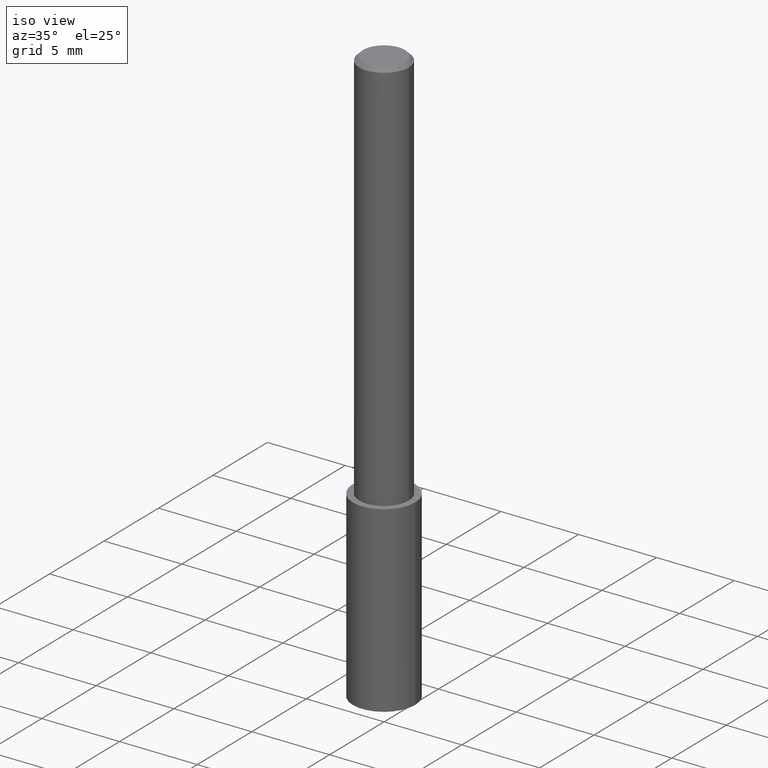
[diagram: clean part render]
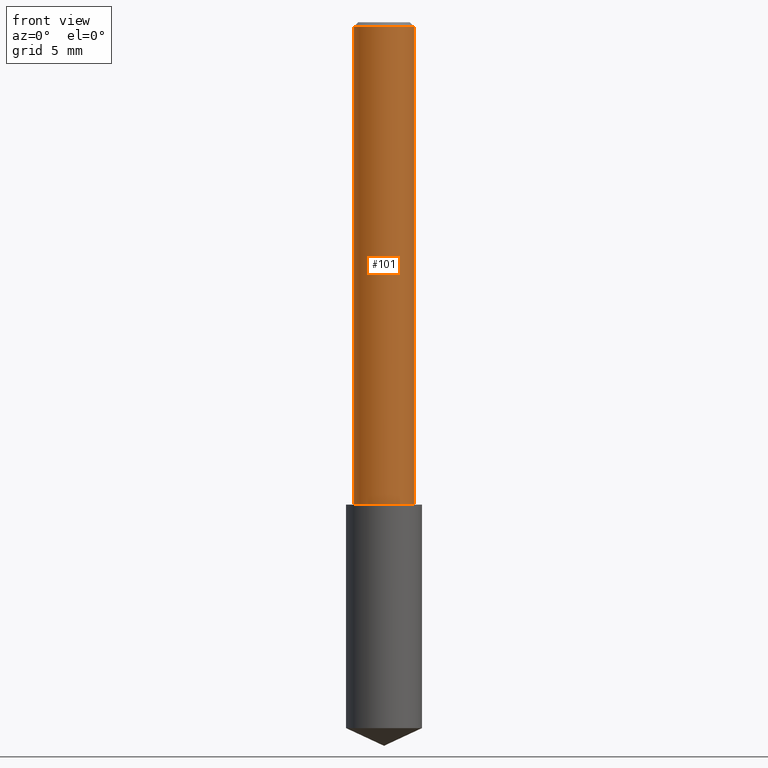
[diagram: tour spotlight — one face highlighted and labeled with its STEP entity id]
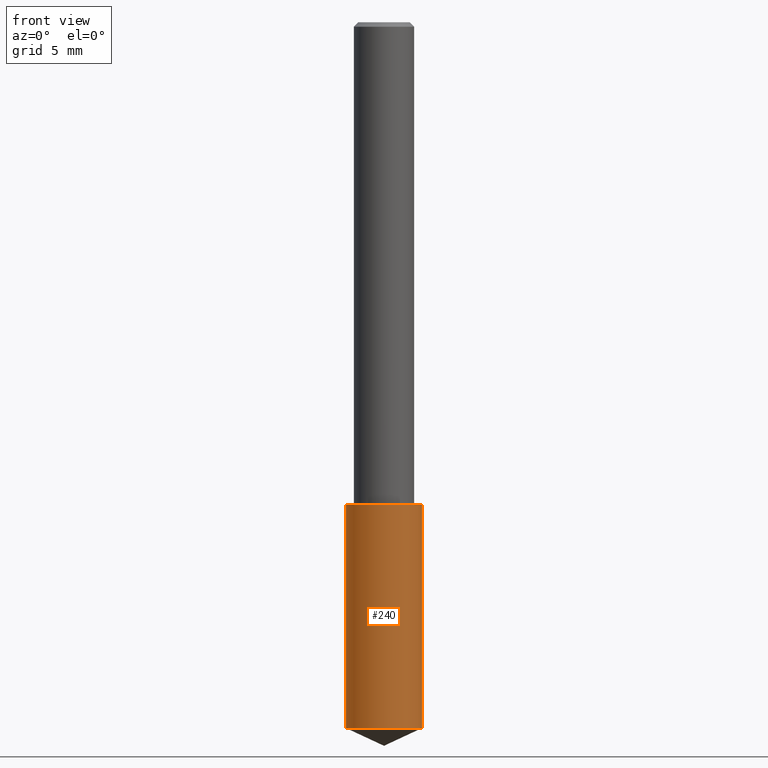
[diagram: tour spotlight — one face highlighted and labeled with its STEP entity id]
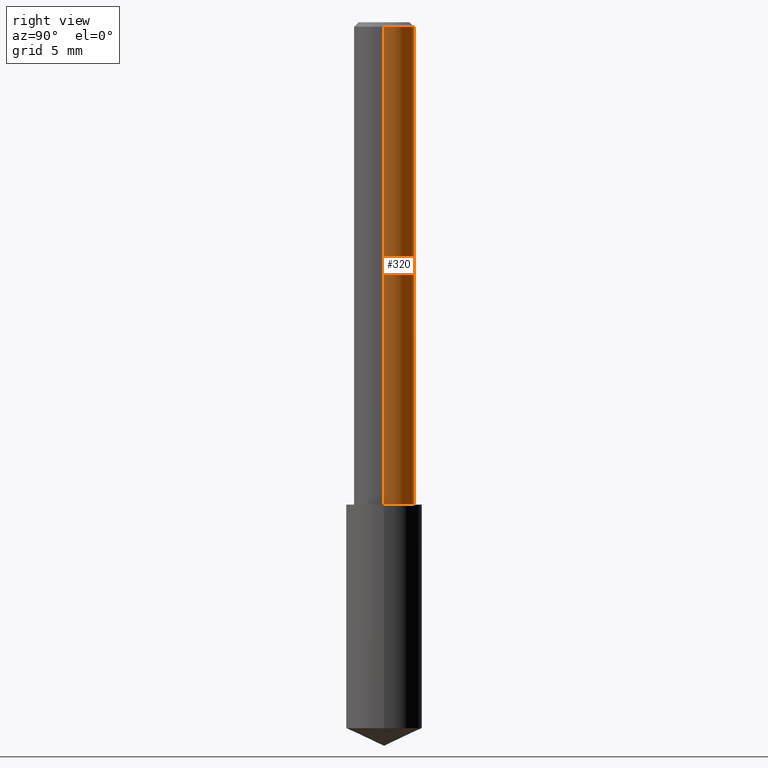
[diagram: tour spotlight — one face highlighted and labeled with its STEP entity id]
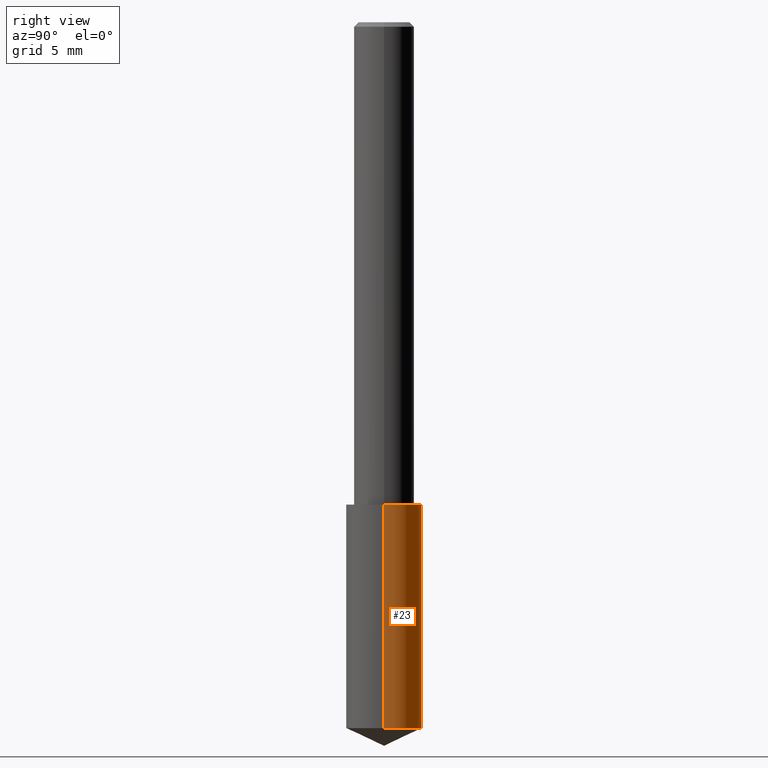
[diagram: tour spotlight — one face highlighted and labeled with its STEP entity id]
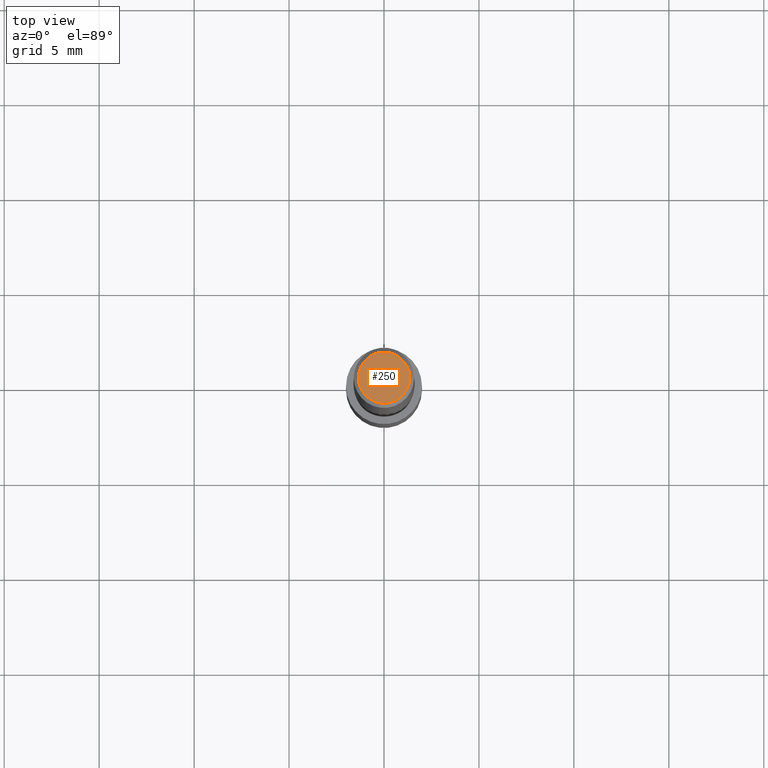
[diagram: tour spotlight — one face highlighted and labeled with its STEP entity id]
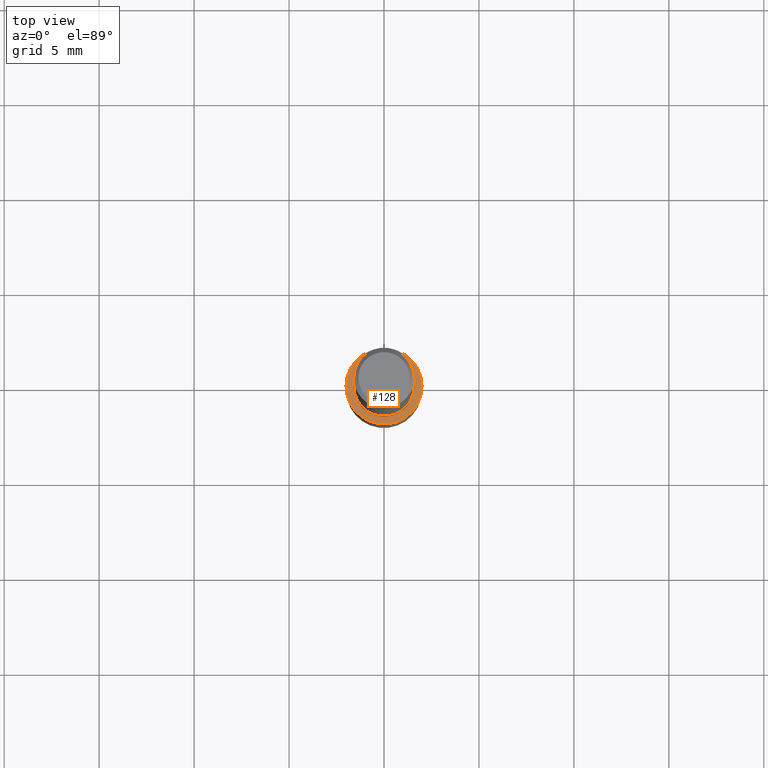
[diagram: tour spotlight — one face highlighted and labeled with its STEP entity id]
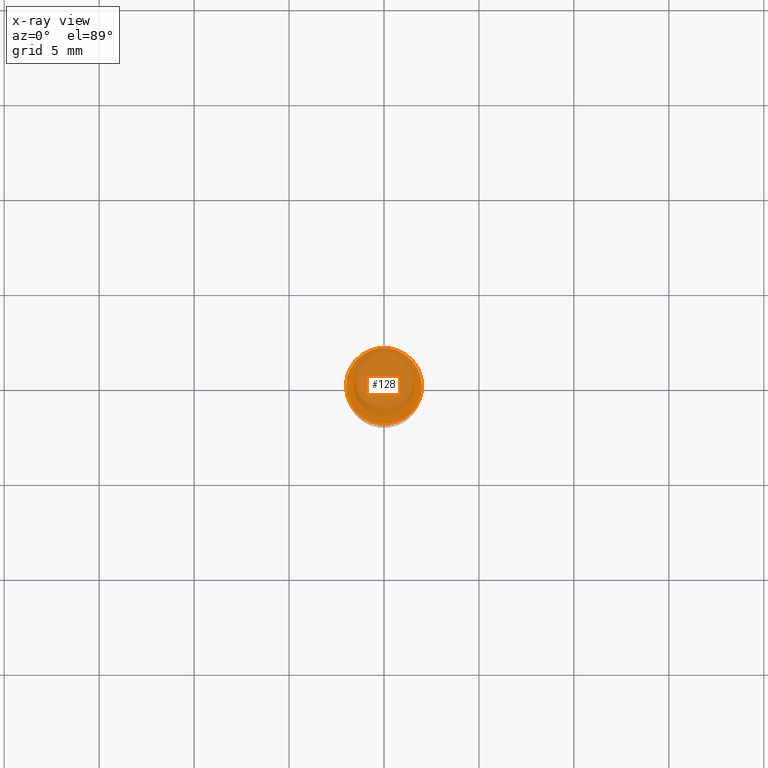
[diagram: x-ray of the same camera — body ghosted, this tour face saturated]
A machine part: a face-by-face anatomy tour. The part has 11 B-rep faces; the first image is the clean iso view, then the 6 largest visible faces are spotlighted one at a time (largest first), each with its STEP entity span.

Face 1 — front view, entity #101. In plain terms, the highlighted cylindrical surface (edge-blend (fillet) strip) has radius 1.5875 mm, axis along (-0, 0, 1).
Definition (entity closure, byte-faithful):
#6 = EDGE_LOOP ( 'NONE', ( #224, #322, #241, #325 ) ) ;
#13 = EDGE_CURVE ( 'NONE', #220, #223, #297, .T. ) ;
#19 = CARTESIAN_POINT ( 'NONE',  ( 2.292627005798582375E-31, -3.273263755165472650E-17, -0.009375000000000067307 ) ) ;
#25 = CARTESIAN_POINT ( 'NONE',  ( 0.000000000000000000, 0.000000000000000000, 0.000000000000000000 ) ) ;
#26 = CARTESIAN_POINT ( 'NONE',  ( 0.06250000000000012490, -3.927916506198539224E-15, -1.000000000000000222 ) ) ;
#42 = VERTEX_POINT ( 'NONE', #308 ) ;
#68 = DIRECTION ( 'NONE',  ( -2.445468806185136597E-29, 3.491481338843145583E-15, 1.000000000000000000 ) ) ;
#75 = FACE_OUTER_BOUND ( 'NONE', #6, .T. ) ;
#76 = CARTESIAN_POINT ( 'NONE',  ( 0.06250000000000006939, -4.364351673553921624E-16, 3.047610484872463374E-30 ) ) ;
#86 = EDGE_CURVE ( 'NONE', #221, #42, #252, .T. ) ;
#93 = EDGE_CURVE ( 'NONE', #220, #221, #225, .T. ) ;
#101 = ADVANCED_FACE ( 'NONE', ( #75 ), #304, .T. ) ;
#122 = VECTOR ( 'NONE', #186, 39.37007874015748143 ) ;
#130 = DIRECTION ( 'NONE',  ( 1.000000000000000000, -6.982962677686266711E-15, 4.876176775795935793E-29 ) ) ;
#139 = AXIS2_PLACEMENT_3D ( 'NONE', #25, #251, #130 ) ;
#142 = CARTESIAN_POINT ( 'NONE',  ( -0.06250000000000000000, -1.318017778347336672E-15, -0.009375000000000067307 ) ) ;
#160 = DIRECTION ( 'NONE',  ( 1.000000000000000000, -6.982962677686266711E-15, 0.000000000000000000 ) ) ;
#180 = DIRECTION ( 'NONE',  ( 1.000000000000000000, -6.982962677686264344E-15, 0.000000000000000000 ) ) ;
#186 = DIRECTION ( 'NONE',  ( -2.445468806185136877E-29, 3.491481338843145188E-15, 1.000000000000000000 ) ) ;
#198 = AXIS2_PLACEMENT_3D ( 'NONE', #19, #202, #160 ) ;
#202 = DIRECTION ( 'NONE',  ( -2.445468806185136597E-29, 3.491481338843145583E-15, 1.000000000000000000 ) ) ;
#204 = CARTESIAN_POINT ( 'NONE',  ( -0.06250000000000012490, -1.318017778347335489E-15, -1.000000000000000222 ) ) ;
#209 = VECTOR ( 'NONE', #306, 39.37007874015748143 ) ;
#220 = VERTEX_POINT ( 'NONE', #204 ) ;
#221 = VERTEX_POINT ( 'NONE', #142 ) ;
#223 = VERTEX_POINT ( 'NONE', #26 ) ;
#224 = ORIENTED_EDGE ( 'NONE', *, *, #93, .F. ) ;
#225 = LINE ( 'NONE', #310, #209 ) ;
#241 = ORIENTED_EDGE ( 'NONE', *, *, #268, .T. ) ;
#251 = DIRECTION ( 'NONE',  ( -2.445468806185136597E-29, 3.491481338843145583E-15, 1.000000000000000000 ) ) ;
#252 = CIRCLE ( 'NONE', #198, 0.06250000000000000000 ) ;
#268 = EDGE_CURVE ( 'NONE', #223, #42, #307, .T. ) ;
#297 = CIRCLE ( 'NONE', #311, 0.06250000000000012490 ) ;
#301 = CARTESIAN_POINT ( 'NONE',  ( 2.445468806185137438E-29, -3.491481338843146371E-15, -1.000000000000000222 ) ) ;
#304 = CYLINDRICAL_SURFACE ( 'NONE', #139, 0.06250000000000006939 ) ;
#306 = DIRECTION ( 'NONE',  ( -2.445468806185136877E-29, 3.491481338843145188E-15, 1.000000000000000000 ) ) ;
#307 = LINE ( 'NONE', #76, #122 ) ;
#308 = CARTESIAN_POINT ( 'NONE',  ( 0.06250000000000000000, -4.691678049070464390E-16, -0.009375000000000067307 ) ) ;
#310 = CARTESIAN_POINT ( 'NONE',  ( -0.06250000000000006939, 4.440892098500631092E-16, -3.074334431409319267E-30 ) ) ;
#311 = AXIS2_PLACEMENT_3D ( 'NONE', #301, #68, #180 ) ;
#322 = ORIENTED_EDGE ( 'NONE', *, *, #13, .T. ) ;
#325 = ORIENTED_EDGE ( 'NONE', *, *, #86, .F. ) ;

Face 2 — front view, entity #240. In plain terms, the highlighted cylindrical surface (partial cylindrical patch) has radius 2.0002 mm, axis along (-0, 0, 1).
Definition (entity closure, byte-faithful):
#9 = VERTEX_POINT ( 'NONE', #44 ) ;
#14 = CARTESIAN_POINT ( 'NONE',  ( -0.07875000000000000056, -3.740692654982671056E-15, -1.000000000000000222 ) ) ;
#27 = AXIS2_PLACEMENT_3D ( 'NONE', #81, #192, #46 ) ;
#44 = CARTESIAN_POINT ( 'NONE',  ( 0.07875000000000000056, -4.041389649710939323E-15, -1.000000000000000222 ) ) ;
#46 = DIRECTION ( 'NONE',  ( 1.000000000000000000, -6.982962677686268288E-15, 0.000000000000000000 ) ) ;
#48 = CARTESIAN_POINT ( 'NONE',  ( 0.07875000000000000056, -4.041389649710940112E-15, -1.000000000000000222 ) ) ;
#63 = EDGE_CURVE ( 'NONE', #90, #95, #217, .T. ) ;
#64 = ORIENTED_EDGE ( 'NONE', *, *, #153, .T. ) ;
#73 = VECTOR ( 'NONE', #187, 39.37007874015748143 ) ;
#78 = CARTESIAN_POINT ( 'NONE',  ( -0.07875000000000000056, -2.931928934432067570E-15, -1.000000000000000222 ) ) ;
#80 = CARTESIAN_POINT ( 'NONE',  ( 0.07874999999999997280, -5.658917090812145507E-15, -1.463278271920293916 ) ) ;
#81 = CARTESIAN_POINT ( 'NONE',  ( 2.445468806185136877E-29, -3.491481338843145977E-15, -1.000000000000000222 ) ) ;
#90 = VERTEX_POINT ( 'NONE', #208 ) ;
#91 = ORIENTED_EDGE ( 'NONE', *, *, #63, .T. ) ;
#95 = VERTEX_POINT ( 'NONE', #80 ) ;
#102 = DIRECTION ( 'NONE',  ( -2.445468806185136877E-29, 3.491481338843145188E-15, 1.000000000000000000 ) ) ;
#120 = ORIENTED_EDGE ( 'NONE', *, *, #156, .F. ) ;
#125 = LINE ( 'NONE', #48, #239 ) ;
#143 = EDGE_CURVE ( 'NONE', #150, #9, #321, .T. ) ;
#150 = VERTEX_POINT ( 'NONE', #14 ) ;
#153 = EDGE_CURVE ( 'NONE', #95, #9, #125, .T. ) ;
#156 = EDGE_CURVE ( 'NONE', #90, #150, #205, .T. ) ;
#164 = CARTESIAN_POINT ( 'NONE',  ( 2.445468806185137438E-29, -3.491481338843146371E-15, -1.000000000000000222 ) ) ;
#167 = CYLINDRICAL_SURFACE ( 'NONE', #215, 0.07875000000000000056 ) ;
#187 = DIRECTION ( 'NONE',  ( -2.445468806185136877E-29, 3.491481338843145188E-15, 1.000000000000000000 ) ) ;
#192 = DIRECTION ( 'NONE',  ( -2.445468806185136597E-29, 3.491481338843145583E-15, 1.000000000000000000 ) ) ;
#205 = LINE ( 'NONE', #78, #73 ) ;
#208 = CARTESIAN_POINT ( 'NONE',  ( -0.07874999999999997280, -4.549456375533274148E-15, -1.463278271920293916 ) ) ;
#215 = AXIS2_PLACEMENT_3D ( 'NONE', #164, #234, #253 ) ;
#217 = CIRCLE ( 'NONE', #233, 0.07875000000000000056 ) ;
#232 = DIRECTION ( 'NONE',  ( 1.000000000000000000, -6.982962677686261977E-15, 0.000000000000000000 ) ) ;
#233 = AXIS2_PLACEMENT_3D ( 'NONE', #328, #282, #232 ) ;
#234 = DIRECTION ( 'NONE',  ( -2.445468806185136597E-29, 3.491481338843145583E-15, 1.000000000000000000 ) ) ;
#239 = VECTOR ( 'NONE', #102, 39.37007874015748143 ) ;
#240 = ADVANCED_FACE ( 'NONE', ( #316 ), #167, .T. ) ;
#253 = DIRECTION ( 'NONE',  ( 1.000000000000000000, -6.982962677686268288E-15, 0.000000000000000000 ) ) ;
#282 = DIRECTION ( 'NONE',  ( -2.445468806185136597E-29, 3.491481338843145583E-15, 1.000000000000000000 ) ) ;
#299 = EDGE_LOOP ( 'NONE', ( #120, #91, #64, #302 ) ) ;
#302 = ORIENTED_EDGE ( 'NONE', *, *, #143, .F. ) ;
#316 = FACE_OUTER_BOUND ( 'NONE', #299, .T. ) ;
#321 = CIRCLE ( 'NONE', #27, 0.07875000000000000056 ) ;
#328 = CARTESIAN_POINT ( 'NONE',  ( 3.578401368749571322E-29, -5.109008779944352161E-15, -1.463278271920293916 ) ) ;

Face 3 — right view, entity #320. In plain terms, the highlighted cylindrical surface (edge-blend (fillet) strip) has radius 1.5875 mm, axis along (-0, 0, 1).
Definition (entity closure, byte-faithful):
#18 = AXIS2_PLACEMENT_3D ( 'NONE', #248, #155, #335 ) ;
#26 = CARTESIAN_POINT ( 'NONE',  ( 0.06250000000000012490, -3.927916506198539224E-15, -1.000000000000000222 ) ) ;
#29 = CARTESIAN_POINT ( 'NONE',  ( 2.445468806185137438E-29, -3.491481338843146371E-15, -1.000000000000000222 ) ) ;
#39 = ORIENTED_EDGE ( 'NONE', *, *, #93, .T. ) ;
#42 = VERTEX_POINT ( 'NONE', #308 ) ;
#49 = EDGE_CURVE ( 'NONE', #42, #221, #129, .T. ) ;
#66 = EDGE_LOOP ( 'NONE', ( #219, #39, #323, #121 ) ) ;
#76 = CARTESIAN_POINT ( 'NONE',  ( 0.06250000000000006939, -4.364351673553921624E-16, 3.047610484872463374E-30 ) ) ;
#93 = EDGE_CURVE ( 'NONE', #220, #221, #225, .T. ) ;
#104 = AXIS2_PLACEMENT_3D ( 'NONE', #29, #140, #258 ) ;
#121 = ORIENTED_EDGE ( 'NONE', *, *, #268, .F. ) ;
#122 = VECTOR ( 'NONE', #186, 39.37007874015748143 ) ;
#129 = CIRCLE ( 'NONE', #18, 0.06250000000000000000 ) ;
#140 = DIRECTION ( 'NONE',  ( -2.445468806185136597E-29, 3.491481338843145583E-15, 1.000000000000000000 ) ) ;
#142 = CARTESIAN_POINT ( 'NONE',  ( -0.06250000000000000000, -1.318017778347336672E-15, -0.009375000000000067307 ) ) ;
#155 = DIRECTION ( 'NONE',  ( -2.445468806185136597E-29, 3.491481338843145583E-15, 1.000000000000000000 ) ) ;
#159 = DIRECTION ( 'NONE',  ( 1.000000000000000000, -6.982962677686266711E-15, 4.876176775795935793E-29 ) ) ;
#178 = EDGE_CURVE ( 'NONE', #223, #220, #188, .T. ) ;
#186 = DIRECTION ( 'NONE',  ( -2.445468806185136877E-29, 3.491481338843145188E-15, 1.000000000000000000 ) ) ;
#188 = CIRCLE ( 'NONE', #104, 0.06250000000000012490 ) ;
#204 = CARTESIAN_POINT ( 'NONE',  ( -0.06250000000000012490, -1.318017778347335489E-15, -1.000000000000000222 ) ) ;
#207 = FACE_OUTER_BOUND ( 'NONE', #66, .T. ) ;
#209 = VECTOR ( 'NONE', #306, 39.37007874015748143 ) ;
#219 = ORIENTED_EDGE ( 'NONE', *, *, #178, .T. ) ;
#220 = VERTEX_POINT ( 'NONE', #204 ) ;
#221 = VERTEX_POINT ( 'NONE', #142 ) ;
#223 = VERTEX_POINT ( 'NONE', #26 ) ;
#225 = LINE ( 'NONE', #310, #209 ) ;
#228 = CARTESIAN_POINT ( 'NONE',  ( 0.000000000000000000, 0.000000000000000000, 0.000000000000000000 ) ) ;
#248 = CARTESIAN_POINT ( 'NONE',  ( 2.292627005798582375E-31, -3.273263755165472650E-17, -0.009375000000000067307 ) ) ;
#258 = DIRECTION ( 'NONE',  ( 1.000000000000000000, -6.982962677686264344E-15, 0.000000000000000000 ) ) ;
#264 = AXIS2_PLACEMENT_3D ( 'NONE', #228, #309, #159 ) ;
#268 = EDGE_CURVE ( 'NONE', #223, #42, #307, .T. ) ;
#306 = DIRECTION ( 'NONE',  ( -2.445468806185136877E-29, 3.491481338843145188E-15, 1.000000000000000000 ) ) ;
#307 = LINE ( 'NONE', #76, #122 ) ;
#308 = CARTESIAN_POINT ( 'NONE',  ( 0.06250000000000000000, -4.691678049070464390E-16, -0.009375000000000067307 ) ) ;
#309 = DIRECTION ( 'NONE',  ( -2.445468806185136597E-29, 3.491481338843145583E-15, 1.000000000000000000 ) ) ;
#310 = CARTESIAN_POINT ( 'NONE',  ( -0.06250000000000006939, 4.440892098500631092E-16, -3.074334431409319267E-30 ) ) ;
#320 = ADVANCED_FACE ( 'NONE', ( #207 ), #340, .T. ) ;
#323 = ORIENTED_EDGE ( 'NONE', *, *, #49, .F. ) ;
#335 = DIRECTION ( 'NONE',  ( 1.000000000000000000, -6.982962677686266711E-15, 0.000000000000000000 ) ) ;
#340 = CYLINDRICAL_SURFACE ( 'NONE', #264, 0.06250000000000006939 ) ;

Face 4 — right view, entity #23. In plain terms, the highlighted cylindrical surface (partial cylindrical patch) has radius 2.0002 mm, axis along (-0, 0, 1).
Definition (entity closure, byte-faithful):
#9 = VERTEX_POINT ( 'NONE', #44 ) ;
#11 = FACE_OUTER_BOUND ( 'NONE', #41, .T. ) ;
#14 = CARTESIAN_POINT ( 'NONE',  ( -0.07875000000000000056, -3.740692654982671056E-15, -1.000000000000000222 ) ) ;
#16 = DIRECTION ( 'NONE',  ( -2.445468806185136597E-29, 3.491481338843145583E-15, 1.000000000000000000 ) ) ;
#23 = ADVANCED_FACE ( 'NONE', ( #11 ), #137, .T. ) ;
#31 = EDGE_CURVE ( 'NONE', #9, #150, #116, .T. ) ;
#41 = EDGE_LOOP ( 'NONE', ( #270, #177, #200, #148 ) ) ;
#44 = CARTESIAN_POINT ( 'NONE',  ( 0.07875000000000000056, -4.041389649710939323E-15, -1.000000000000000222 ) ) ;
#48 = CARTESIAN_POINT ( 'NONE',  ( 0.07875000000000000056, -4.041389649710940112E-15, -1.000000000000000222 ) ) ;
#67 = AXIS2_PLACEMENT_3D ( 'NONE', #106, #16, #277 ) ;
#70 = EDGE_CURVE ( 'NONE', #95, #90, #92, .T. ) ;
#73 = VECTOR ( 'NONE', #187, 39.37007874015748143 ) ;
#78 = CARTESIAN_POINT ( 'NONE',  ( -0.07875000000000000056, -2.931928934432067570E-15, -1.000000000000000222 ) ) ;
#80 = CARTESIAN_POINT ( 'NONE',  ( 0.07874999999999997280, -5.658917090812145507E-15, -1.463278271920293916 ) ) ;
#90 = VERTEX_POINT ( 'NONE', #208 ) ;
#92 = CIRCLE ( 'NONE', #67, 0.07875000000000000056 ) ;
#95 = VERTEX_POINT ( 'NONE', #80 ) ;
#102 = DIRECTION ( 'NONE',  ( -2.445468806185136877E-29, 3.491481338843145188E-15, 1.000000000000000000 ) ) ;
#106 = CARTESIAN_POINT ( 'NONE',  ( 3.578401368749571322E-29, -5.109008779944352161E-15, -1.463278271920293916 ) ) ;
#116 = CIRCLE ( 'NONE', #261, 0.07875000000000000056 ) ;
#125 = LINE ( 'NONE', #48, #239 ) ;
#127 = CARTESIAN_POINT ( 'NONE',  ( 2.445468806185136877E-29, -3.491481338843145977E-15, -1.000000000000000222 ) ) ;
#132 = CARTESIAN_POINT ( 'NONE',  ( 2.445468806185137438E-29, -3.491481338843146371E-15, -1.000000000000000222 ) ) ;
#137 = CYLINDRICAL_SURFACE ( 'NONE', #218, 0.07875000000000000056 ) ;
#148 = ORIENTED_EDGE ( 'NONE', *, *, #153, .F. ) ;
#150 = VERTEX_POINT ( 'NONE', #14 ) ;
#153 = EDGE_CURVE ( 'NONE', #95, #9, #125, .T. ) ;
#156 = EDGE_CURVE ( 'NONE', #90, #150, #205, .T. ) ;
#163 = DIRECTION ( 'NONE',  ( -2.445468806185136597E-29, 3.491481338843145583E-15, 1.000000000000000000 ) ) ;
#177 = ORIENTED_EDGE ( 'NONE', *, *, #156, .T. ) ;
#187 = DIRECTION ( 'NONE',  ( -2.445468806185136877E-29, 3.491481338843145188E-15, 1.000000000000000000 ) ) ;
#200 = ORIENTED_EDGE ( 'NONE', *, *, #31, .F. ) ;
#203 = DIRECTION ( 'NONE',  ( 1.000000000000000000, -6.982962677686268288E-15, 0.000000000000000000 ) ) ;
#205 = LINE ( 'NONE', #78, #73 ) ;
#208 = CARTESIAN_POINT ( 'NONE',  ( -0.07874999999999997280, -4.549456375533274148E-15, -1.463278271920293916 ) ) ;
#218 = AXIS2_PLACEMENT_3D ( 'NONE', #132, #163, #255 ) ;
#239 = VECTOR ( 'NONE', #102, 39.37007874015748143 ) ;
#255 = DIRECTION ( 'NONE',  ( 1.000000000000000000, -6.982962677686268288E-15, 0.000000000000000000 ) ) ;
#261 = AXIS2_PLACEMENT_3D ( 'NONE', #127, #330, #203 ) ;
#270 = ORIENTED_EDGE ( 'NONE', *, *, #70, .T. ) ;
#277 = DIRECTION ( 'NONE',  ( 1.000000000000000000, -6.982962677686261977E-15, 0.000000000000000000 ) ) ;
#330 = DIRECTION ( 'NONE',  ( -2.445468806185136597E-29, 3.491481338843145583E-15, 1.000000000000000000 ) ) ;

Face 5 — top view, entity #250. In plain terms, the highlighted planar face has unit normal (0, -0, -1).
Definition (entity closure, byte-faithful):
#8 = VERTEX_POINT ( 'NONE', #154 ) ;
#20 = CARTESIAN_POINT ( 'NONE',  ( -7.487088864773345706E-50, 1.068957861474247695E-35, 3.061616997868395197E-21 ) ) ;
#34 = CIRCLE ( 'NONE', #260, 0.05312499999999999861 ) ;
#56 = AXIS2_PLACEMENT_3D ( 'NONE', #339, #312, #212 ) ;
#58 = CARTESIAN_POINT ( 'NONE',  ( -7.487088864773345706E-50, 1.068957861474247695E-35, 3.061616997868395197E-21 ) ) ;
#100 = DIRECTION ( 'NONE',  ( -2.445468806185136597E-29, 3.491481338843145583E-15, 1.000000000000000000 ) ) ;
#103 = DIRECTION ( 'NONE',  ( 1.000000000000000000, -6.982962677686266711E-15, 4.876176628004948512E-29 ) ) ;
#119 = VERTEX_POINT ( 'NONE', #229 ) ;
#131 = PLANE ( 'NONE',  #56 ) ;
#134 = AXIS2_PLACEMENT_3D ( 'NONE', #58, #100, #283 ) ;
#151 = CIRCLE ( 'NONE', #134, 0.05312499999999999861 ) ;
#152 = ORIENTED_EDGE ( 'NONE', *, *, #266, .T. ) ;
#154 = CARTESIAN_POINT ( 'NONE',  ( -0.05312499999999999861, 3.873362110279099094E-16, 3.061616995216862494E-21 ) ) ;
#182 = EDGE_LOOP ( 'NONE', ( #152, #327 ) ) ;
#194 = EDGE_CURVE ( 'NONE', #119, #8, #151, .T. ) ;
#212 = DIRECTION ( 'NONE',  ( -1.000000000000000000, 6.982962677686265922E-15, -4.876176775795935793E-29 ) ) ;
#229 = CARTESIAN_POINT ( 'NONE',  ( 0.05312499999999999861, -4.129888592719939842E-16, 3.061617000609493422E-21 ) ) ;
#230 = DIRECTION ( 'NONE',  ( -2.445468806185136597E-29, 3.491481338843145583E-15, 1.000000000000000000 ) ) ;
#236 = FACE_OUTER_BOUND ( 'NONE', #182, .T. ) ;
#250 = ADVANCED_FACE ( 'NONE', ( #236 ), #131, .F. ) ;
#260 = AXIS2_PLACEMENT_3D ( 'NONE', #20, #230, #103 ) ;
#266 = EDGE_CURVE ( 'NONE', #8, #119, #34, .T. ) ;
#283 = DIRECTION ( 'NONE',  ( 1.000000000000000000, -6.982962677686266711E-15, 4.876176628004948512E-29 ) ) ;
#312 = DIRECTION ( 'NONE',  ( 2.438088387897960049E-29, -3.491481338843145188E-15, -1.000000000000000000 ) ) ;
#327 = ORIENTED_EDGE ( 'NONE', *, *, #194, .T. ) ;
#339 = CARTESIAN_POINT ( 'NONE',  ( -3.743544432386672853E-50, 5.344789307371238476E-36, 1.530808498934197599E-21 ) ) ;

Face 6 — top view, entity #128. An x-ray twin of the same camera follows (body ghosted, this face saturated) — the face is partly hidden behind the body. In plain terms, the highlighted planar face has unit normal (0, -0, -1).
Definition (entity closure, byte-faithful):
#9 = VERTEX_POINT ( 'NONE', #44 ) ;
#14 = CARTESIAN_POINT ( 'NONE',  ( -0.07875000000000000056, -3.740692654982671056E-15, -1.000000000000000222 ) ) ;
#27 = AXIS2_PLACEMENT_3D ( 'NONE', #81, #192, #46 ) ;
#31 = EDGE_CURVE ( 'NONE', #9, #150, #116, .T. ) ;
#36 = AXIS2_PLACEMENT_3D ( 'NONE', #190, #185, #284 ) ;
#44 = CARTESIAN_POINT ( 'NONE',  ( 0.07875000000000000056, -4.041389649710939323E-15, -1.000000000000000222 ) ) ;
#46 = DIRECTION ( 'NONE',  ( 1.000000000000000000, -6.982962677686268288E-15, 0.000000000000000000 ) ) ;
#51 = PLANE ( 'NONE',  #36 ) ;
#72 = ORIENTED_EDGE ( 'NONE', *, *, #143, .T. ) ;
#81 = CARTESIAN_POINT ( 'NONE',  ( 2.445468806185136877E-29, -3.491481338843145977E-15, -1.000000000000000222 ) ) ;
#116 = CIRCLE ( 'NONE', #261, 0.07875000000000000056 ) ;
#127 = CARTESIAN_POINT ( 'NONE',  ( 2.445468806185136877E-29, -3.491481338843145977E-15, -1.000000000000000222 ) ) ;
#128 = ADVANCED_FACE ( 'NONE', ( #332 ), #51, .F. ) ;
#143 = EDGE_CURVE ( 'NONE', #150, #9, #321, .T. ) ;
#150 = VERTEX_POINT ( 'NONE', #14 ) ;
#185 = DIRECTION ( 'NONE',  ( 2.438088387897960049E-29, -3.491481338843145188E-15, -1.000000000000000000 ) ) ;
#190 = CARTESIAN_POINT ( 'NONE',  ( 3.656668335129243185E-29, -1.756974676199169330E-15, -1.000000000000000222 ) ) ;
#192 = DIRECTION ( 'NONE',  ( -2.445468806185136597E-29, 3.491481338843145583E-15, 1.000000000000000000 ) ) ;
#195 = ORIENTED_EDGE ( 'NONE', *, *, #31, .T. ) ;
#201 = EDGE_LOOP ( 'NONE', ( #195, #72 ) ) ;
#203 = DIRECTION ( 'NONE',  ( 1.000000000000000000, -6.982962677686268288E-15, 0.000000000000000000 ) ) ;
#261 = AXIS2_PLACEMENT_3D ( 'NONE', #127, #330, #203 ) ;
#284 = DIRECTION ( 'NONE',  ( -1.000000000000000000, 6.982962677686265922E-15, -4.876176775795935793E-29 ) ) ;
#321 = CIRCLE ( 'NONE', #27, 0.07875000000000000056 ) ;
#330 = DIRECTION ( 'NONE',  ( -2.445468806185136597E-29, 3.491481338843145583E-15, 1.000000000000000000 ) ) ;
#332 = FACE_OUTER_BOUND ( 'NONE', #201, .T. ) ;